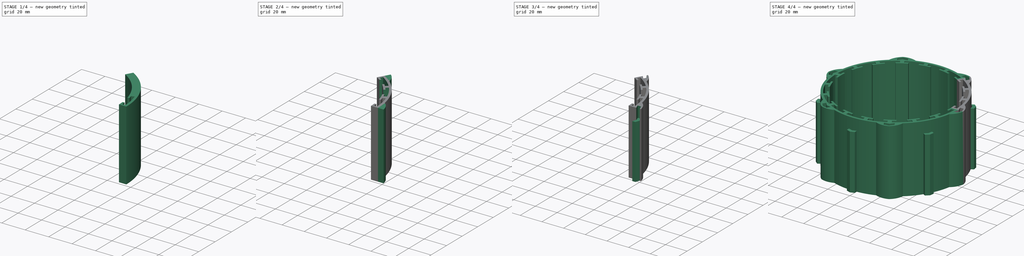
[diagram: build sequence overview — one tinted view per stage of 4, left to right]
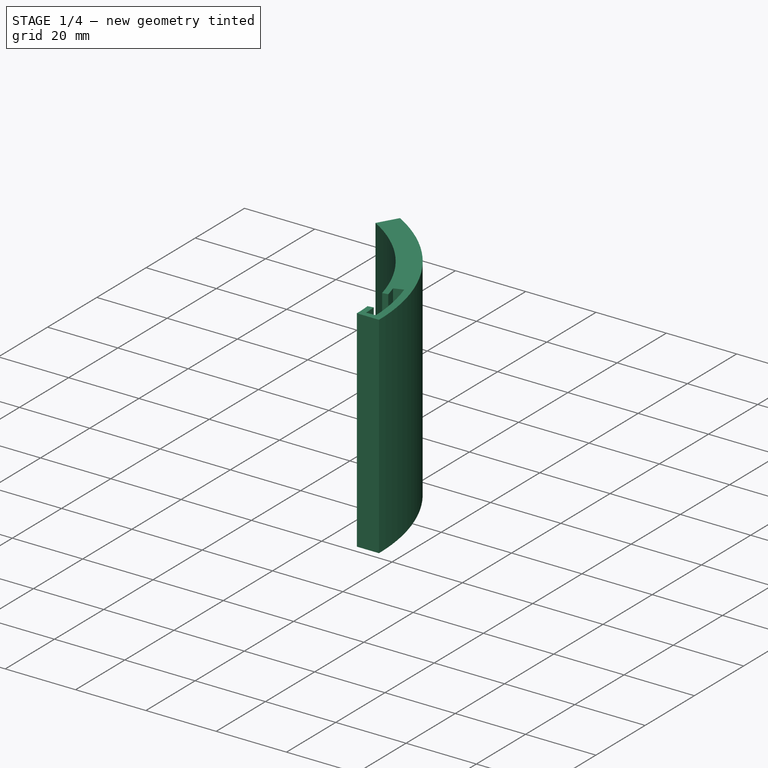
[diagram: stage 1 of 4 — iso view after this stage's code; geometry added in this stage tinted green]
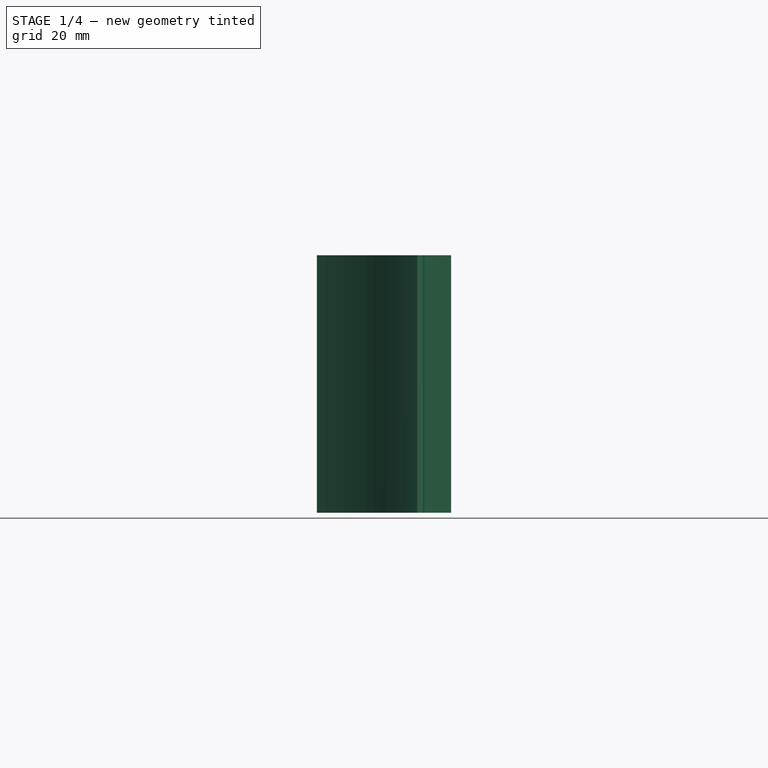
[diagram: stage 1 of 4 — front view after this stage's code; geometry added in this stage tinted green]
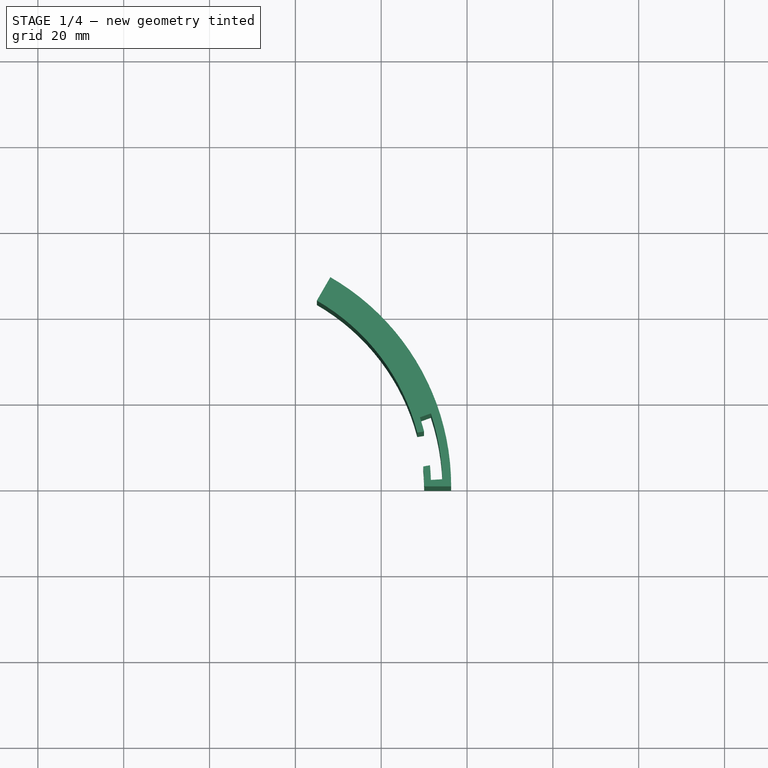
[diagram: stage 1 of 4 — top view after this stage's code; geometry added in this stage tinted green]
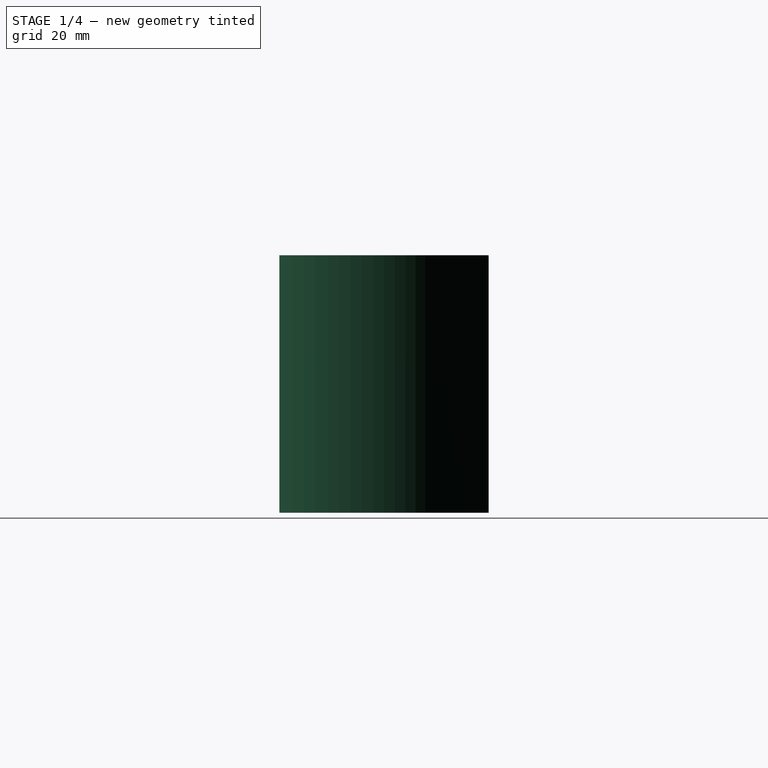
[diagram: stage 1 of 4 — right view after this stage's code; geometry added in this stage tinted green]
FCSTD DOCUMENT  (FreeCAD 0.16RUnknown)
Label: segments
License: CreativeCommons Attribution
LicenseURL: http://creativecommons.org/licenses/by/4.0/
objects: Sketcher::SketchObject×6, PartDesign::Pad×3, Part::FeaturePython×2, PartDesign::Pocket×2, PartDesign::Mirrored×1, PartDesign::PolarPattern×1
note: 20 computed .brp shape members not serialized (recipe doc carries the construction recipe); baked Part::Feature solids carry a one-line shape summary decoded from their .brp

FEATURE [Sketcher::SketchObject] Sketch  label="segment"
  sketch-geometry (6):
    g0: LineSegment StartX=50 StartY=0 StartZ=0 EndX=56.3 EndY=0 EndZ=0
    g1: LineSegment StartX=25 StartY=43.3013 StartZ=0 EndX=28.15 EndY=48.7572 EndZ=0
    g2: LineSegment [constr] StartX=25 StartY=43.3013 StartZ=0 EndX=0 EndY=0 EndZ=0
    g3: LineSegment [constr] StartX=50 StartY=0 StartZ=0 EndX=0 EndY=0 EndZ=0
    g4: ArcOfCircle CenterX=0 CenterY=0 CenterZ=0 NormalX=0 NormalY=0 NormalZ=1 Radius=50 StartAngle=0 EndAngle=1.0472
    g5: ArcOfCircle CenterX=0 CenterY=0 CenterZ=0 NormalX=0 NormalY=0 NormalZ=1 Radius=56.3 StartAngle=0 EndAngle=1.0472
  constraints (16):
    c: PointOnObject(g0,g-1)
    c: Horizontal(g0)
    c: Coincident(g2,g1)
    c: Coincident(g2,g-1)
    c: Parallel(g2,g1)
    c: Coincident(g3,g0)
    c: Coincident(g3,g-1)
    c: Angle(g3,g2) = 1.0472
    c: Coincident(g4,g-1)
    c: Coincident(g4,g1)
    c: Coincident(g4,g0)
    c: Coincident(g5,g-1)
    c: Coincident(g5,g1)
    c: Coincident(g5,g0)
    c: DistanceX(g0,g0) = 6.3
    c: DistanceX(g3,g3) = 50  'innerradius'
FEATURE [PartDesign::Pad] Pad
  Length = 60
  Length2 = 2
  Sketch = -> Sketch
  Type = 0
FEATURE [PartDesign::Pocket] Pocket
  Length = 5
  Sketch = -> Sketch004
  Type = 1
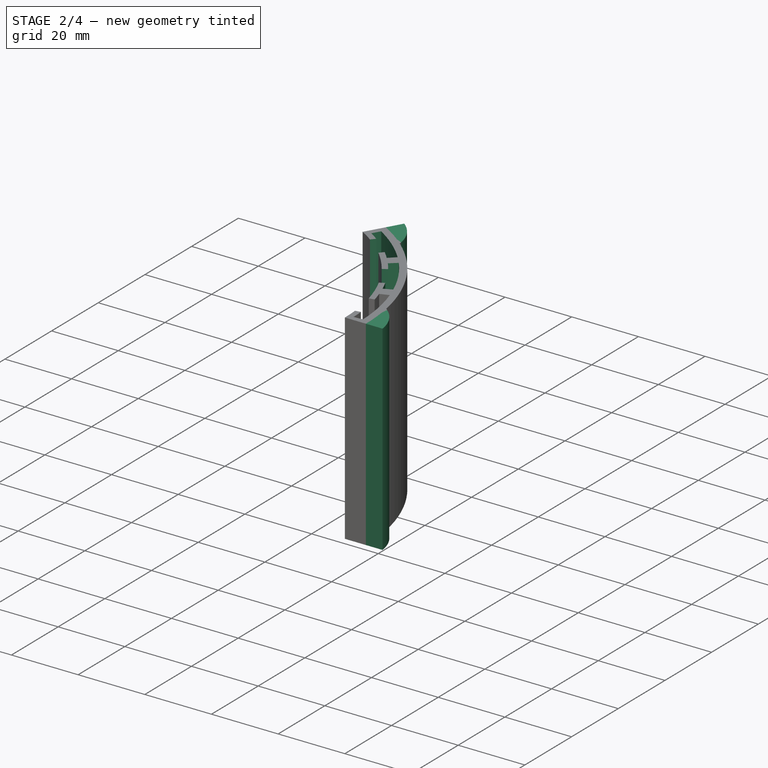
[diagram: stage 2 of 4 — iso view after this stage's code; geometry added in this stage tinted green]
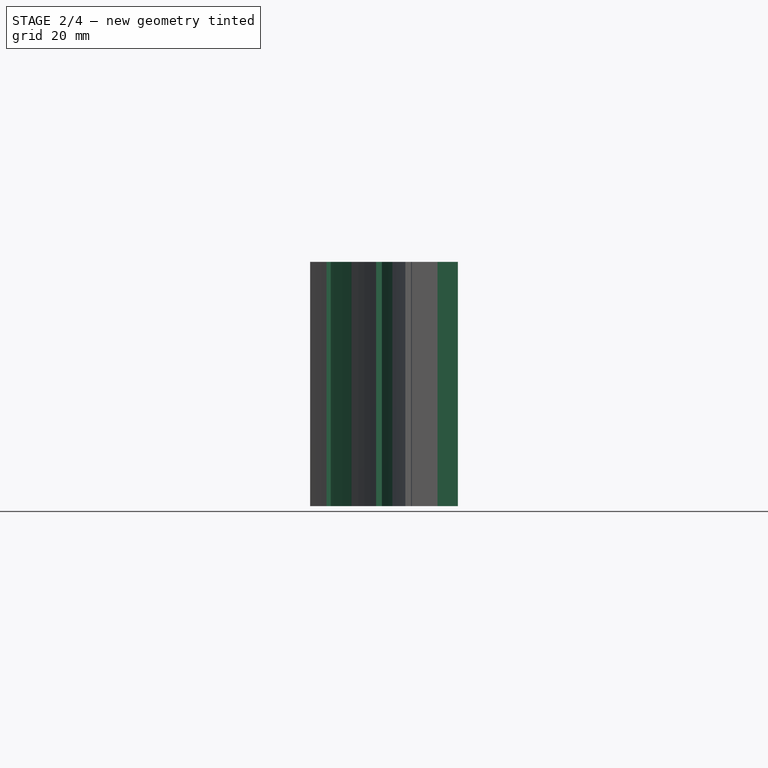
[diagram: stage 2 of 4 — front view after this stage's code; geometry added in this stage tinted green]
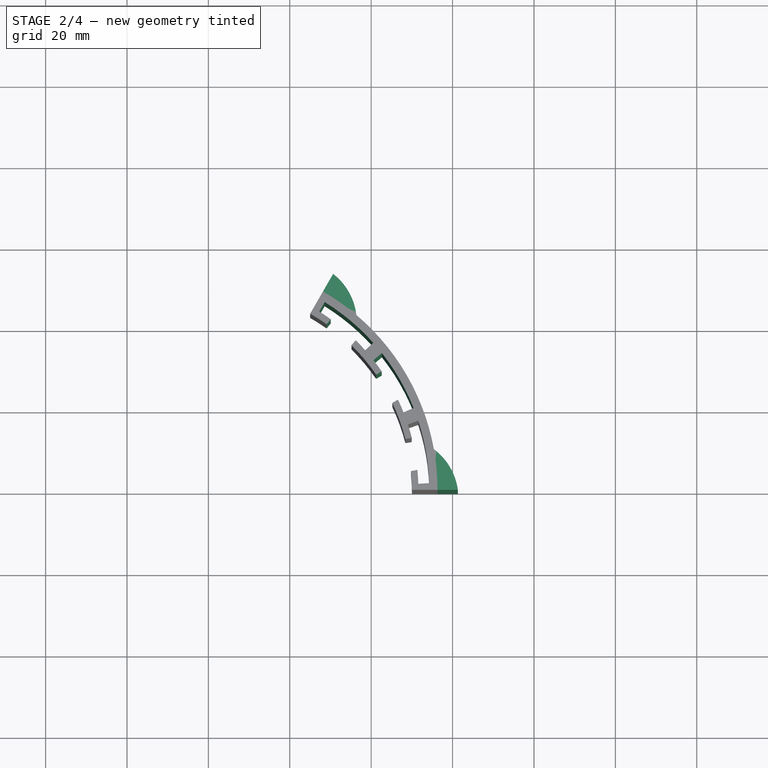
[diagram: stage 2 of 4 — top view after this stage's code; geometry added in this stage tinted green]
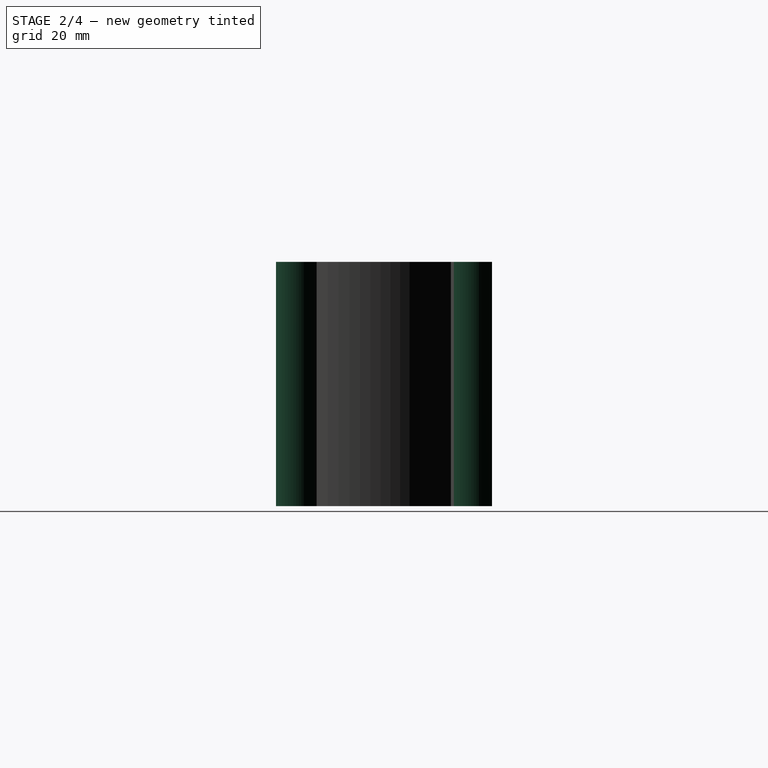
[diagram: stage 2 of 4 — right view after this stage's code; geometry added in this stage tinted green]
FEATURE [PartDesign::PolarPattern] PolarPattern
  Angle = 40
  Axis = -> Sketch004 [N_Axis]
  Occurrences = 3
  Originals = -> [Pocket]
FEATURE [Sketcher::SketchObject] Sketch005  label="segtabs"
  ExternalGeometry = -> [PolarPattern]
  Placement = pos=(0,0,60) rot=(0,0,1;0rad)
  Support = -> PolarPattern [Face4]
  sketch-geometry (9):
    g0: ArcOfCircle [constr] CenterX=0 CenterY=0 CenterZ=0 NormalX=0 NormalY=0 NormalZ=1 Radius=56.3 StartAngle=0.178567 EndAngle=0.86863
    g1: ArcOfCircle CenterX=0 CenterY=0 CenterZ=0 NormalX=0 NormalY=0 NormalZ=1 Radius=56.3 StartAngle=0.86863 EndAngle=1.0472
    g2: ArcOfCircle CenterX=0 CenterY=0 CenterZ=0 NormalX=0 NormalY=0 NormalZ=1 Radius=56.3 StartAngle=0 EndAngle=0.178567
    g3: LineSegment StartX=56.3 StartY=0 StartZ=0 EndX=61.3 EndY=0 EndZ=0
    g4: ArcOfCircle CenterX=46.4372 CenterY=-2.02426 CenterZ=0 NormalX=0 NormalY=0 NormalZ=1 Radius=15 StartAngle=0.135363 EndAngle=0.929995
    g5: LineSegment StartX=28.15 StartY=48.7572 StartZ=0 EndX=30.65 EndY=53.0874 EndZ=0
    g6: ArcOfCircle CenterX=21.4656 CenterY=41.2279 CenterZ=0 NormalX=0 NormalY=0 NormalZ=1 Radius=15 StartAngle=0.117202 EndAngle=0.911834
    g7: LineSegment [constr] StartX=30.65 StartY=53.0874 StartZ=0 EndX=36.3626 EndY=42.9819 EndZ=0
    g8: LineSegment [constr] StartX=55.4048 StartY=10 StartZ=0 EndX=61.3 EndY=0 EndZ=0
  constraints (25):
    c: Coincident(g0,g-1)
    c: Coincident(g1,g-1)
    c: Coincident(g0,g1)
    c: Coincident(g2,g-1)
    c: Coincident(g2,g0)
    c: Coincident(g3,g2)
    c: Horizontal(g3)
    c: Coincident(g4,g0)
    c: Coincident(g4,g3)
    c: DistanceX(g3,g3) = 5
    c: DistanceY(g2,g0) = 10
    c: PointOnObject(g2,g-1)
    c: Coincident(g5,g1)
    c: Perpendicular(g1,g5)
    c: Coincident(g6,g5)
    c: Coincident(g6,g0)
    c: Equal(g6,g4)
    c: Equal(g5,g3)
    c: Coincident(g7,g5)
    c: Coincident(g7,g0)
    c: Coincident(g8,g0)
    c: Coincident(g8,g3)
    c: Equal(g8,g7)
    c: Coincident(g1,g-3)
    c: Radius(g4) = 15
FEATURE [PartDesign::Pad] Pad003
  Length = 60
  Length2 = 100
  Reversed = true
  Sketch = -> Sketch005
  Type = 0
  expr: Length = Pad.Length
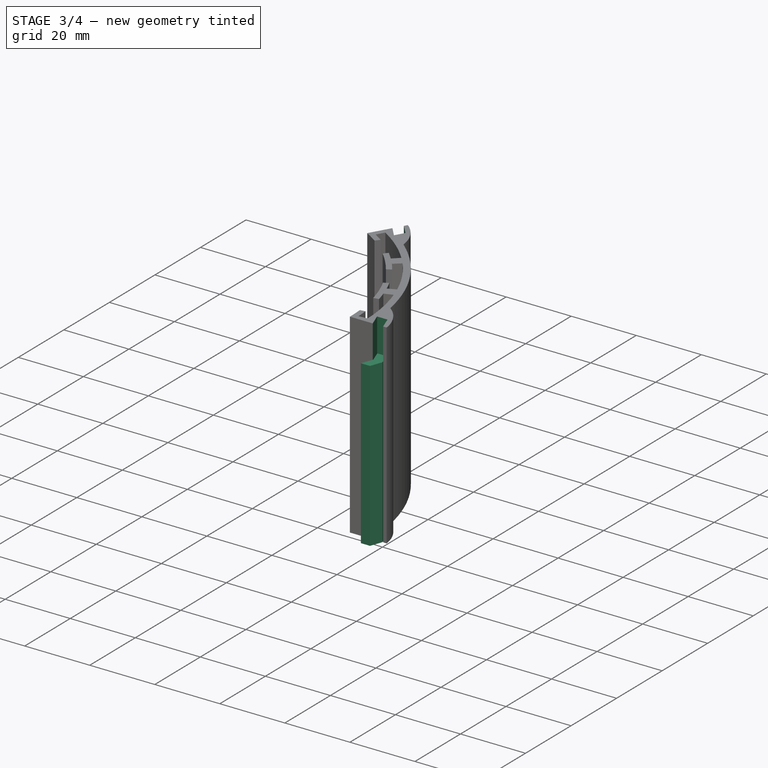
[diagram: stage 3 of 4 — iso view after this stage's code; geometry added in this stage tinted green]
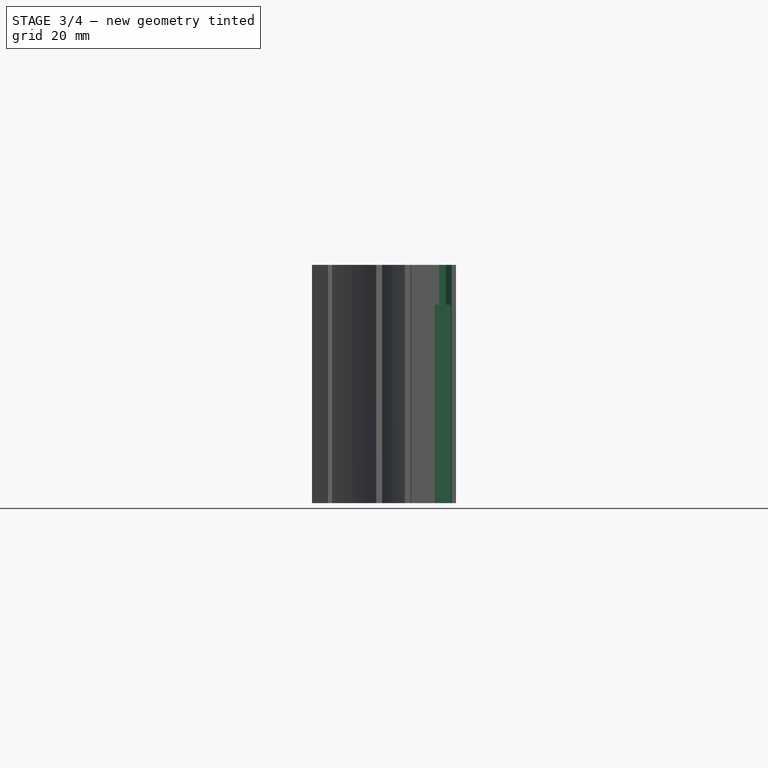
[diagram: stage 3 of 4 — front view after this stage's code; geometry added in this stage tinted green]
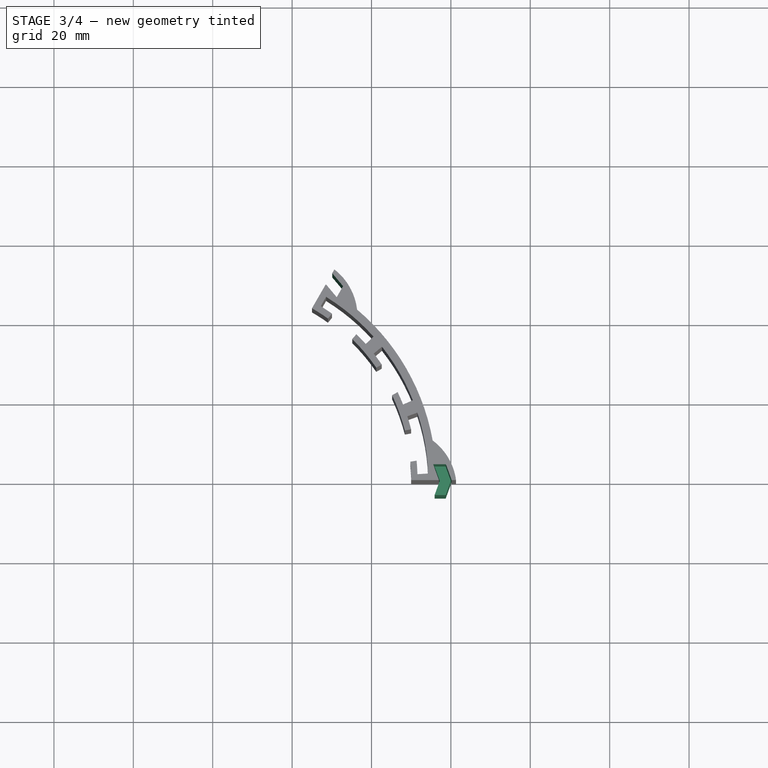
[diagram: stage 3 of 4 — top view after this stage's code; geometry added in this stage tinted green]
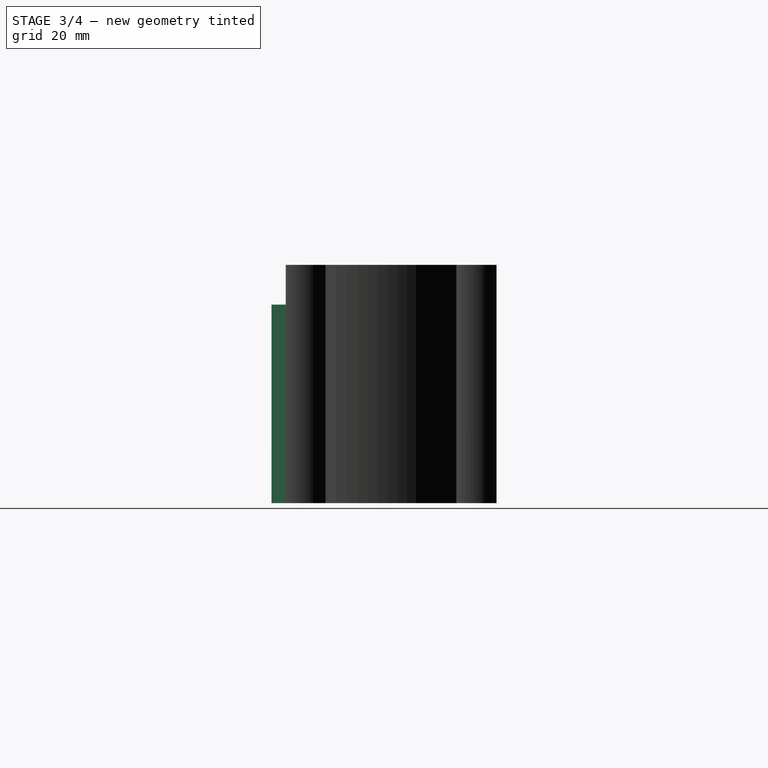
[diagram: stage 3 of 4 — right view after this stage's code; geometry added in this stage tinted green]
FEATURE [Sketcher::SketchObject] Sketch001  label="pin-s"
  ExternalGeometry = -> [Pad]
  Placement = pos=(0,0,0) rot=(1,0,0;3.14159rad)
  Support = -> Pad [Face5]
  sketch-geometry (3):
    g0: LineSegment StartX=56.2461 StartY=-2.46296 StartZ=0 EndX=59.2461 EndY=-1.29654 EndZ=0
    g1: LineSegment StartX=59.2461 StartY=-1.29654 StartZ=0 EndX=56.3 EndY=0 EndZ=0
    g2: ArcOfCircle CenterX=0 CenterY=0 CenterZ=0 NormalX=0 NormalY=0 NormalZ=1 Radius=56.3 StartAngle=6.23942 EndAngle=6.28319
  constraints (9):
    c: Coincident(g1,g0)
    c: Coincident(g2,g-1)
    c: Coincident(g2,g1)
    c: Coincident(g2,g0)
    c: Equal(g0,g1)
    c: Angle(g1,g0) = 0.785398
    c: DistanceX(g0,g0) = 3
    c: PointOnObject(g1,g-1)
    c: PointOnObject(g0,g-3)
FEATURE [Sketcher::SketchObject] Sketch003  label="butterfly-half"
  sketch-geometry (6):
    g0: LineSegment StartX=55.8897 StartY=3.6 StartZ=0 EndX=57.2 EndY=0 EndZ=0
    g1: LineSegment StartX=58.6897 StartY=3.6 StartZ=0 EndX=55.8897 EndY=3.6 EndZ=0
    g2: LineSegment StartX=57.2 StartY=0 StartZ=0 EndX=60 EndY=0 EndZ=0
    g3: LineSegment [constr] StartX=57.2 StartY=0 StartZ=0 EndX=0 EndY=0 EndZ=0
    g4: GeomPoint [constr] X=50 Y=0 Z=0
    g5: LineSegment StartX=58.6897 StartY=3.6 StartZ=0 EndX=60 EndY=0 EndZ=0
  constraints (16):
    c: Coincident(g1,g0)
    c: Horizontal(g1)
    c: Coincident(g2,g0)
    c: Horizontal(g2)
    c: DistanceX(g1,g1) = 2.8
    c: Coincident(g3,g0)
    c: Coincident(g3,g-1)
    c: Horizontal(g3)
    c: PointOnObject(g4,g3)
    c: DistanceX(g4,g0) = 7.2
    c: DistanceX(g-1,g4) = 50
    c: Coincident(g5,g1)
    c: Coincident(g5,g2)
    c: Parallel(g5,g0)
    c: Angle(g0,g3) = 1.22173
    c: DistanceY(g0,g0) = 3.6
FEATURE [PartDesign::Pad] Pad002
  Length = 50
  Length2 = 100
  Sketch = -> Sketch003
  Type = 0
FEATURE [PartDesign::Mirrored] Mirrored  label="butterfly[stl]"
  MirrorPlane = -> Sketch003 [H_Axis]
  Originals = -> [Pad002]
FEATURE [Sketcher::SketchObject] Sketch002  label="segment-butterflies"
  ExternalGeometry = -> [Pad003]
  Placement = pos=(0,0,60) rot=(0,0,1;0rad)
  Support = -> Pad003 [Face33]
  sketch-geometry (11):
    g0: LineSegment StartX=57 StartY=0 StartZ=0 EndX=55.5441 EndY=4 EndZ=0
    g1: LineSegment StartX=55.5441 StartY=4 StartZ=0 EndX=58.7441 EndY=4 EndZ=0
    g2: LineSegment StartX=58.7441 StartY=4 StartZ=0 EndX=60.2 EndY=0 EndZ=0
    g3: LineSegment StartX=60.2 StartY=0 StartZ=0 EndX=57 EndY=0 EndZ=0
    g4: LineSegment StartX=30.1 StartY=52.1347 StartZ=0 EndX=32.8362 EndY=48.8739 EndZ=0
    g5: LineSegment StartX=32.8362 StartY=48.8739 StartZ=0 EndX=31.2362 EndY=46.1026 EndZ=0
    g6: LineSegment StartX=31.2362 StartY=46.1026 StartZ=0 EndX=28.5 EndY=49.3634 EndZ=0
    g7: LineSegment StartX=28.5 StartY=49.3634 StartZ=0 EndX=30.1 EndY=52.1347 EndZ=0
    g8: LineSegment [constr] StartX=57 StartY=0 StartZ=0 EndX=0 EndY=0 EndZ=0
    g9: LineSegment [constr] StartX=28.5 StartY=49.3634 StartZ=0 EndX=0 EndY=0 EndZ=0
    g10: GeomPoint [constr] X=50 Y=0 Z=0
  constraints (31):
    c: Coincident(g0,g1)
    c: Coincident(g3,g0)
    c: Coincident(g2,g1)
    c: Coincident(g3,g2)
    c: Coincident(g3,g8)
    c: Coincident(g5,g4)
    c: Coincident(g7,g4)
    c: Coincident(g6,g5)
    c: Coincident(g9,g6)
    c: Coincident(g9,g7)
    c: Parallel(g9,g7)
    c: Equal(g6,g4)
    c: Parallel(g8,g3)
    c: Parallel(g3,g1)
    c: PointOnObject(g2,g-1)
    c: Equal(g7,g3)
    c: Equal(g1,g5)
    c: Equal(g9,g8)
    c: DistanceX(g0,g2) = 3.2
    c: Horizontal(g3)
    c: Coincident(g9,g-1)
    c: Coincident(g8,g-1)
    c: PointOnObject(g6,g-3)
    c: PointOnObject(g10,g8)
    c: DistanceX(g10,g0) = 7
    c: DistanceX(g-1,g10) = 50
    c: Angle(g0,g8) = 1.22173
    c: Parallel(g2,g0)
    c: Equal(g0,g6)
    c: Angle(g9,g6) = 1.22173
    c: DistanceY(g2,g1) = 4
FEATURE [PartDesign::Pocket] Pocket001  label="segment[stl]"
  Length = 5
  Sketch = -> Sketch002
  Type = 1
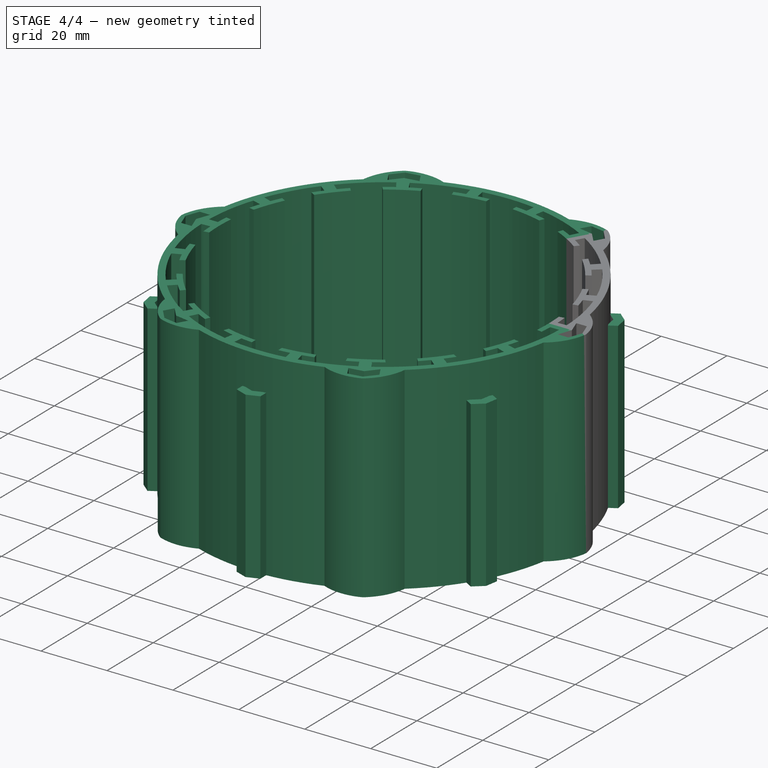
[diagram: stage 4 of 4 — iso view after this stage's code; geometry added in this stage tinted green]
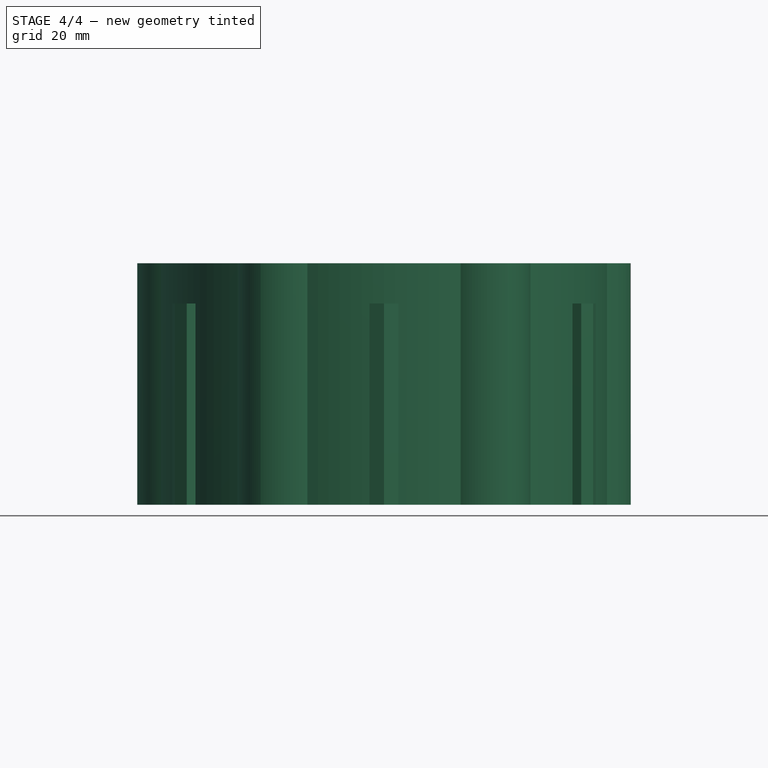
[diagram: stage 4 of 4 — front view after this stage's code; geometry added in this stage tinted green]
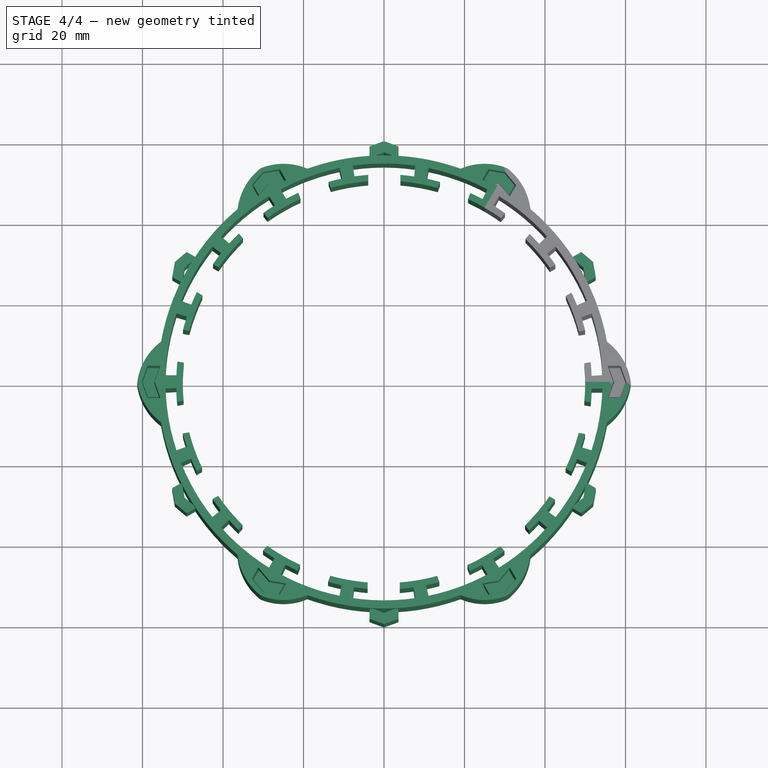
[diagram: stage 4 of 4 — top view after this stage's code; geometry added in this stage tinted green]
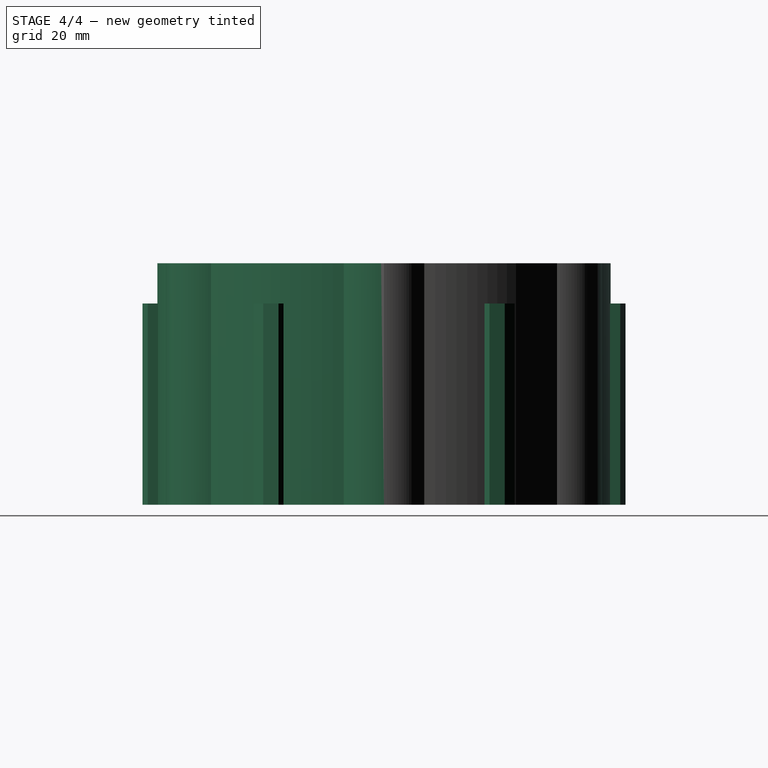
[diagram: stage 4 of 4 — right view after this stage's code; geometry added in this stage tinted green]
FEATURE [Sketcher::SketchObject] Sketch004  label="needleslot"
  ExternalGeometry = -> [Pad]
  Placement = pos=(0,0,60) rot=(0,0,1;0rad)
  Support = -> Pad [Face6]
  sketch-geometry (11):
    g0: ArcOfCircle CenterX=0 CenterY=0 CenterZ=0 NormalX=0 NormalY=0 NormalZ=1 Radius=54.2936 StartAngle=0.0307253 EndAngle=0.318567
    g1: ArcOfCircle CenterX=0 CenterY=0 CenterZ=0 NormalX=0 NormalY=0 NormalZ=1 Radius=51.595 StartAngle=0.250602 EndAngle=0.316919
    g2: ArcOfCircle CenterX=0 CenterY=0 CenterZ=0 NormalX=0 NormalY=0 NormalZ=1 Radius=51.595 StartAngle=0.0290767 EndAngle=0.0953929
    g3: LineSegment StartX=51.5732 StartY=1.5 StartZ=0 EndX=54.268 EndY=1.66793 EndZ=0
    g4: LineSegment StartX=49.0256 StartY=16.0791 StartZ=0 EndX=51.5618 EndY=17.0051 EndZ=0
    g5: ArcOfCircle CenterX=0 CenterY=0 CenterZ=0 NormalX=0 NormalY=0 NormalZ=1 Radius=50 StartAngle=0.0929121 EndAngle=0.253083
    g6: LineSegment StartX=48.4073 StartY=12.5195 StartZ=0 EndX=49.9834 EndY=12.7949 EndZ=0
    g7: LineSegment StartX=49.7843 StartY=4.63892 StartZ=0 EndX=51.3605 EndY=4.91434 EndZ=0
    g8: LineSegment [constr] StartX=49.9834 StartY=12.7949 StartZ=0 EndX=51.3605 EndY=4.91434 EndZ=0
    g9: LineSegment [constr] StartX=49.9834 StartY=12.7949 StartZ=0 EndX=49.0256 EndY=16.0791 EndZ=0
    g10: LineSegment [constr] StartX=51.5732 StartY=1.5 StartZ=0 EndX=51.3605 EndY=4.91434 EndZ=0
  constraints (30):
    c: Coincident(g0,g-1)
    c: Coincident(g1,g-1)
    c: Coincident(g2,g-1)
    c: Coincident(g3,g2)
    c: Coincident(g3,g0)
    c: Coincident(g4,g1)
    c: Coincident(g4,g0)
    c: Coincident(g5,g-1)
    c: Coincident(g6,g5)
    c: Coincident(g6,g1)
    c: Coincident(g7,g5)
    c: Coincident(g7,g2)
    c: Coincident(g8,g1)
    c: Coincident(g8,g2)
    c: Equal(g3,g4)
    c: Perpendicular(g8,g7)
    c: Perpendicular(g8,g6)
    c: Distance(g8) = 8
    c: Equal(g1,g2)
    c: Coincident(g9,g1)
    c: Coincident(g9,g1)
    c: Coincident(g10,g2)
    c: Coincident(g10,g2)
    c: Equal(g10,g9)
    c: Distance(g3) = 2.7
    c: Perpendicular(g10,g3)
    c: Distance(g7) = 1.6
    c: Distance(g1,g2) = 14.8
    c: PointOnObject(g5,g-3)
    c: DistanceY(g-3,g2) = 1.5
FEATURE [Part::FeaturePython] Array001  label="butterflies"  # Draft array (typed FeaturePython)
  Angle = 360
  ArrayType = 1
  Axis = (0,0,1)
  Base = -> Mirrored
  Center = (0,0,0)
  Fuse = false
  IntervalAxis = (0,0,0)
  IntervalX = (1,0,0)
  IntervalY = (0,1,0)
  IntervalZ = (0,0,0)
  NumberPolar = 12
  NumberX = 0
  NumberY = 0
  NumberZ = 0
FEATURE [Part::FeaturePython] Array  label="segments"  # Draft array (typed FeaturePython)
  Angle = 360
  ArrayType = 1
  Axis = (0,0,1)
  Base = -> Pocket001
  Center = (0,0,0)
  Fuse = false
  IntervalAxis = (0,0,0)
  IntervalX = (1,0,0)
  IntervalY = (0,1,0)
  IntervalZ = (0,0,0)
  NumberPolar = 6
  NumberX = 0
  NumberY = 0
  NumberZ = 0
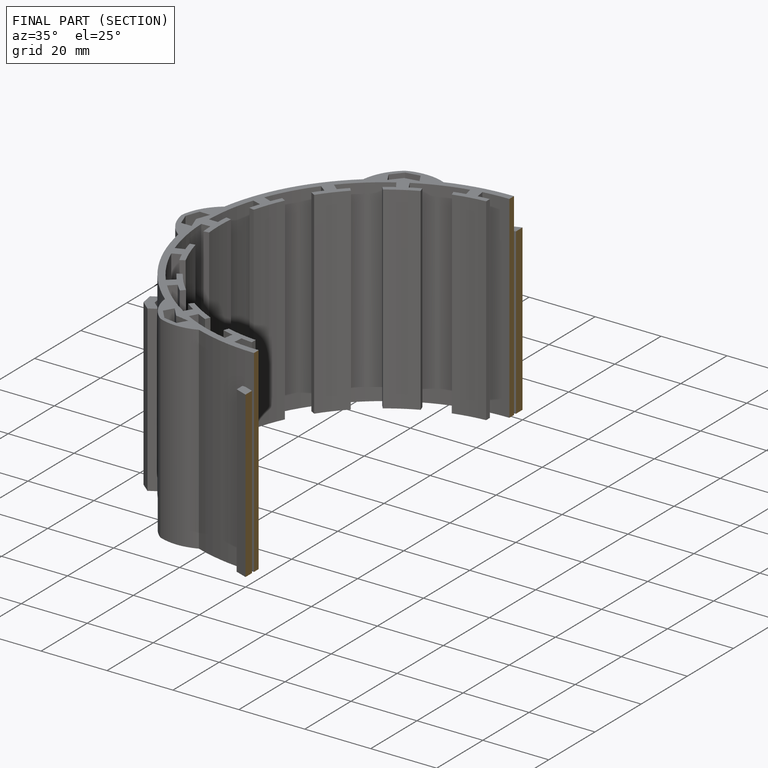
[diagram: finished part — half-section view (interior)]
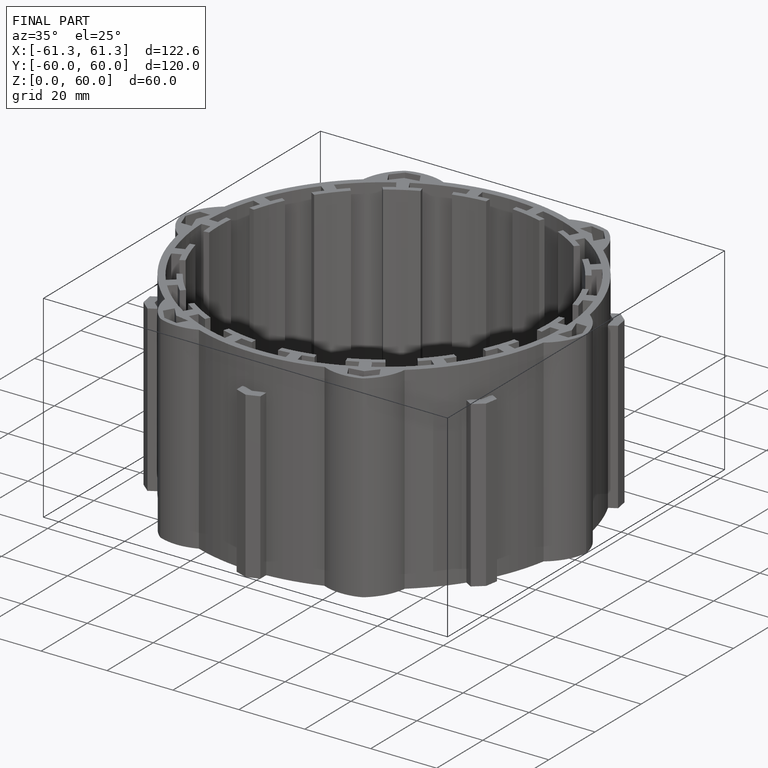
[diagram: finished part — iso view with bounding-box wireframe]
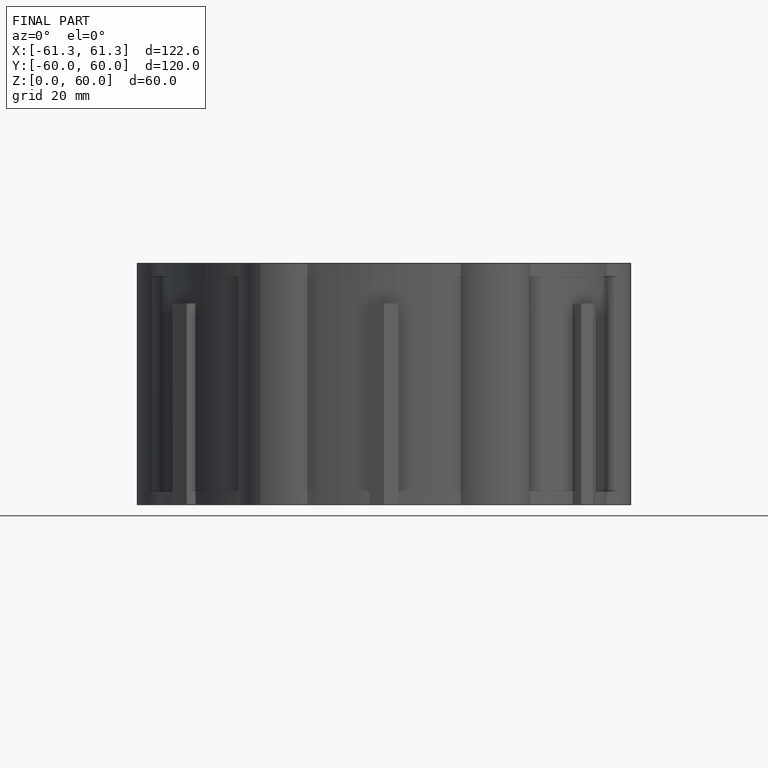
[diagram: finished part — front view with bounding-box wireframe]
